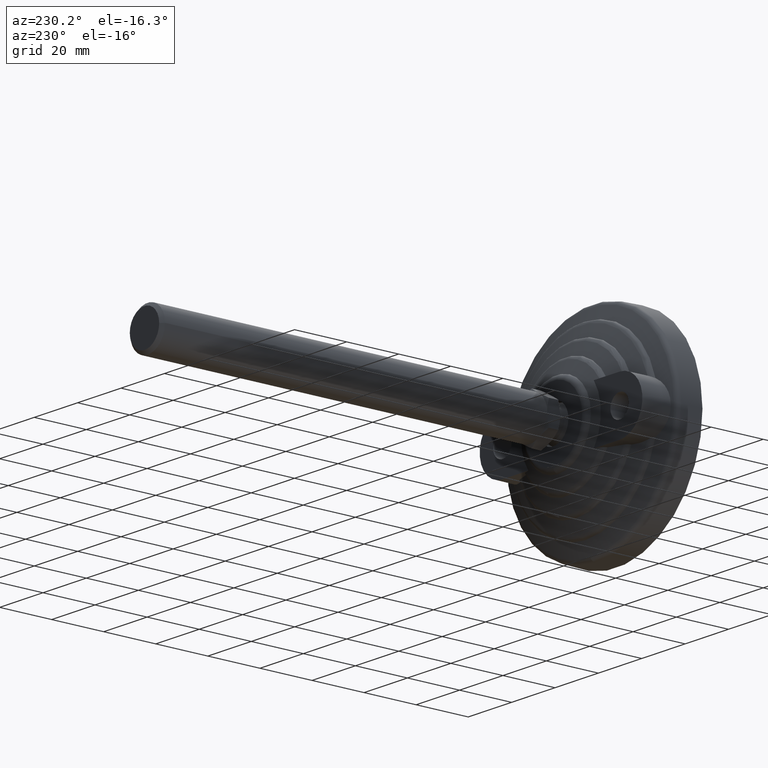
[diagram: clean part render]
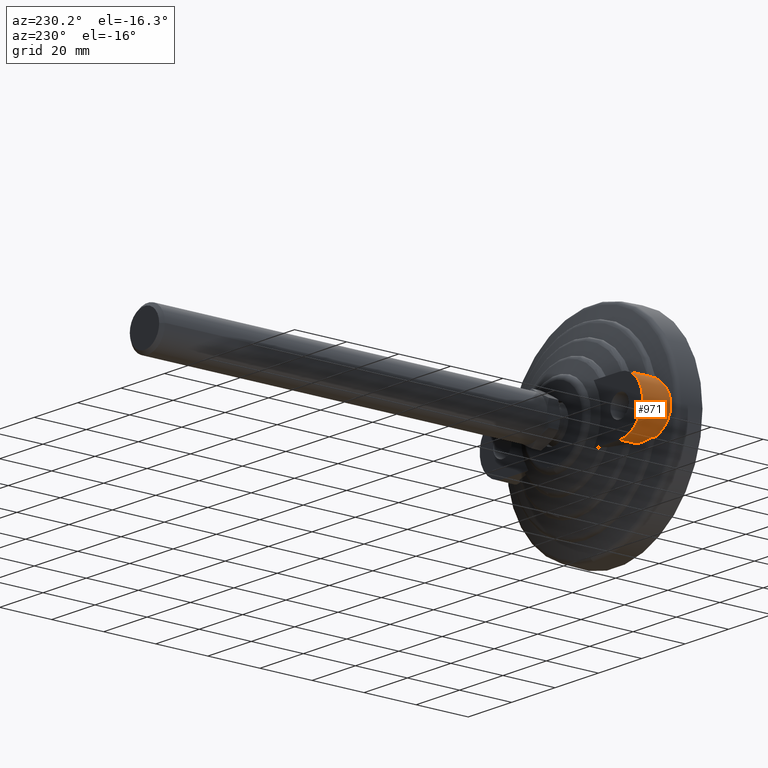
[diagram: same view with one face highlighted and labeled with its STEP entity id]
A machine part, auxiliary view. The second image highlights one B-rep face of the part: STEP entity #971.
In plain terms, the highlighted cylindrical surface (edge-blend (fillet) strip) has radius 10.5 mm, axis along (0, 1, 0).
Its self-contained STEP definition (entity closure, byte-faithful):
#115=B_SPLINE_CURVE_WITH_KNOTS('',3,(#1722,#1723,#1724,#1725,#1726,#1727),
 .UNSPECIFIED.,.F.,.F.,(4,2,4),(5.76722868500192,6.05783616383258,6.15239931787654),
 .UNSPECIFIED.);
#116=B_SPLINE_CURVE_WITH_KNOTS('',3,(#1729,#1730,#1731,#1732,#1733,#1734,
#1735,#1736,#1737,#1738),.UNSPECIFIED.,.F.,.F.,(4,2,2,2,4),(-0.277755263623777,
-0.240449563586303,-0.201911387548122,-0.120044959040971,0.),
 .UNSPECIFIED.);
#117=B_SPLINE_CURVE_WITH_KNOTS('',3,(#1740,#1741,#1742,#1743,#1744,#1745,
#1746,#1747,#1748,#1749,#1750,#1751,#1752,#1753,#1754,#1755,#1756,#1757,
#1758,#1759,#1760,#1761),.UNSPECIFIED.,.F.,.F.,(4,2,2,2,2,2,2,2,2,2,4),
(3.43606543224134,3.49650336834101,3.75130165602007,4.00609994369912,4.26089823137818,
4.51569651905723,4.77049480673629,5.02529309441534,5.2800913820944,5.53488966977346,
5.59532760587313),.UNSPECIFIED.);
#118=B_SPLINE_CURVE_WITH_KNOTS('',3,(#1763,#1764,#1765,#1766,#1767,#1768,
#1769,#1770,#1771,#1772),.UNSPECIFIED.,.F.,.F.,(4,2,2,2,4),(-0.258726061847404,
-0.192005591979209,-0.127331546332243,-0.0568854047078998,0.),
 .UNSPECIFIED.);
#119=B_SPLINE_CURVE_WITH_KNOTS('',3,(#1773,#1774,#1775,#1776,#1777,#1778),
 .UNSPECIFIED.,.F.,.F.,(4,2,4),(2.8665167227233,2.96107987676726,3.25168735559793),
 .UNSPECIFIED.);
#154=FACE_OUTER_BOUND('',#213,.T.);
#213=EDGE_LOOP('',(#709,#710,#711,#712,#713,#714,#715,#716));
#272=LINE('',#1647,#297);
#273=LINE('',#1654,#298);
#297=VECTOR('',#1259,10.);
#298=VECTOR('',#1262,10.);
#330=CIRCLE('',#1086,10.5);
#412=VERTEX_POINT('',#1607);
#413=VERTEX_POINT('',#1609);
#418=VERTEX_POINT('',#1643);
#420=VERTEX_POINT('',#1653);
#429=VERTEX_POINT('',#1721);
#430=VERTEX_POINT('',#1728);
#431=VERTEX_POINT('',#1739);
#432=VERTEX_POINT('',#1762);
#520=EDGE_CURVE('',#413,#412,#330,.T.);
#527=EDGE_CURVE('',#418,#412,#272,.T.);
#529=EDGE_CURVE('',#420,#413,#273,.T.);
#540=EDGE_CURVE('',#429,#418,#115,.T.);
#541=EDGE_CURVE('',#430,#429,#116,.T.);
#542=EDGE_CURVE('',#431,#430,#117,.T.);
#543=EDGE_CURVE('',#432,#431,#118,.T.);
#544=EDGE_CURVE('',#420,#432,#119,.T.);
#709=ORIENTED_EDGE('',*,*,#540,.F.);
#710=ORIENTED_EDGE('',*,*,#541,.F.);
#711=ORIENTED_EDGE('',*,*,#542,.F.);
#712=ORIENTED_EDGE('',*,*,#543,.F.);
#713=ORIENTED_EDGE('',*,*,#544,.F.);
#714=ORIENTED_EDGE('',*,*,#529,.T.);
#715=ORIENTED_EDGE('',*,*,#520,.T.);
#716=ORIENTED_EDGE('',*,*,#527,.F.);
#956=CYLINDRICAL_SURFACE('',#1090,10.5);
#971=ADVANCED_FACE('',(#154),#956,.T.);
#1086=AXIS2_PLACEMENT_3D('',#1610,#1254,#1255);
#1090=AXIS2_PLACEMENT_3D('',#1720,#1266,#1267);
#1254=DIRECTION('center_axis',(0.,-1.,0.));
#1255=DIRECTION('ref_axis',(0.,0.,-1.));
#1259=DIRECTION('',(0.,1.,0.));
#1262=DIRECTION('',(0.,1.,0.));
#1266=DIRECTION('center_axis',(0.,1.,0.));
#1267=DIRECTION('ref_axis',(0.,0.,-1.));
#1607=CARTESIAN_POINT('',(-27.,21.,-10.5));
#1609=CARTESIAN_POINT('',(-27.,21.,10.5));
#1610=CARTESIAN_POINT('Origin',(-27.,21.,0.));
#1643=CARTESIAN_POINT('',(-27.,14.6225422536565,-10.5));
#1647=CARTESIAN_POINT('',(-27.,1.,-10.5));
#1653=CARTESIAN_POINT('',(-27.,14.6225422536565,10.5));
#1654=CARTESIAN_POINT('',(-27.,1.,10.5));
#1720=CARTESIAN_POINT('Origin',(-27.,1.,0.));
#1721=CARTESIAN_POINT('',(-30.7243523480942,13.353673555576,-9.81729084764454));
#1722=CARTESIAN_POINT('Ctrl Pts',(-30.7243523480942,13.353673555576,-9.81729084764453));
#1723=CARTESIAN_POINT('Ctrl Pts',(-29.830006323037,13.6428573128391,-10.1565758673228));
#1724=CARTESIAN_POINT('Ctrl Pts',(-28.8835374298768,13.9591533364495,-10.373863285386));
#1725=CARTESIAN_POINT('Ctrl Pts',(-27.6208747110214,14.4006946398294,-10.4862470382709));
#1726=CARTESIAN_POINT('Ctrl Pts',(-27.3100625601747,14.5109163877395,-10.5));
#1727=CARTESIAN_POINT('Ctrl Pts',(-27.,14.6225422536565,-10.5));
#1728=CARTESIAN_POINT('',(-32.3063347882672,11.634402129208,-9.0605083254101));
#1729=CARTESIAN_POINT('Ctrl Pts',(-32.3063347882672,11.634402129208,-9.06050832541008));
#1730=CARTESIAN_POINT('Ctrl Pts',(-32.2945097725938,11.7470214768291,-9.06743370859899));
#1731=CARTESIAN_POINT('Ctrl Pts',(-32.2711448108866,11.8570399226639,-9.08110933825304));
#1732=CARTESIAN_POINT('Ctrl Pts',(-32.2025727881487,12.0737170603725,-9.12057303751808));
#1733=CARTESIAN_POINT('Ctrl Pts',(-32.1570729432958,12.1788603178273,-9.14649888055782));
#1734=CARTESIAN_POINT('Ctrl Pts',(-31.9878000675641,12.4897320142283,-9.24062730694749));
#1735=CARTESIAN_POINT('Ctrl Pts',(-31.834189715029,12.6746567257404,-9.3230214032625));
#1736=CARTESIAN_POINT('Ctrl Pts',(-31.4026645792191,13.058894855084,-9.53669261508742));
#1737=CARTESIAN_POINT('Ctrl Pts',(-31.0830924858773,13.2400784773632,-9.68119681770869));
#1738=CARTESIAN_POINT('Ctrl Pts',(-30.7243523480942,13.353673555576,-9.81729084764453));
#1739=CARTESIAN_POINT('',(-32.3063347882672,11.634402129208,9.0605083254101));
#1740=CARTESIAN_POINT('Ctrl Pts',(-32.3063347882672,11.634402129208,9.06050832541009));
#1741=CARTESIAN_POINT('Ctrl Pts',(-32.4756282120752,11.5807529569084,8.9613607332537));
#1742=CARTESIAN_POINT('Ctrl Pts',(-32.6416513835052,11.5284668447145,8.85775183258476));
#1743=CARTESIAN_POINT('Ctrl Pts',(-33.4889272146619,11.2631137489724,8.29573262740808));
#1744=CARTESIAN_POINT('Ctrl Pts',(-34.1415479553644,11.0639803282255,7.74512395475072));
#1745=CARTESIAN_POINT('Ctrl Pts',(-35.3059647272951,10.7146726535325,6.48071000741379));
#1746=CARTESIAN_POINT('Ctrl Pts',(-35.8178332302516,10.5643788194163,5.76700451409473));
#1747=CARTESIAN_POINT('Ctrl Pts',(-36.6493270133366,10.3226629521174,4.23119495069076));
#1748=CARTESIAN_POINT('Ctrl Pts',(-36.9700150310205,10.2308804167138,3.40717504130202));
#1749=CARTESIAN_POINT('Ctrl Pts',(-37.3954079477496,10.1095211444229,1.71625612304319));
#1750=CARTESIAN_POINT('Ctrl Pts',(-37.5,10.0799597506078,0.849327625596855));
#1751=CARTESIAN_POINT('Ctrl Pts',(-37.5,10.0799597506078,-0.849327625596851));
#1752=CARTESIAN_POINT('Ctrl Pts',(-37.3954079477496,10.1095211444229,-1.71625612304319));
#1753=CARTESIAN_POINT('Ctrl Pts',(-36.9700150310205,10.2308804167138,-3.40717504130202));
#1754=CARTESIAN_POINT('Ctrl Pts',(-36.6493270133366,10.3226629521174,-4.23119495069075));
#1755=CARTESIAN_POINT('Ctrl Pts',(-35.8178332302516,10.5643788194163,-5.76700451409472));
#1756=CARTESIAN_POINT('Ctrl Pts',(-35.3059647272951,10.7146726535325,-6.48071000741379));
#1757=CARTESIAN_POINT('Ctrl Pts',(-34.1415479553644,11.0639803282255,-7.74512395475072));
#1758=CARTESIAN_POINT('Ctrl Pts',(-33.4889272146619,11.2631137489724,-8.29573262740808));
#1759=CARTESIAN_POINT('Ctrl Pts',(-32.6416513835052,11.5284668447145,-8.85775183258476));
#1760=CARTESIAN_POINT('Ctrl Pts',(-32.4756282120752,11.5807529569084,-8.9613607332537));
#1761=CARTESIAN_POINT('Ctrl Pts',(-32.3063347882672,11.634402129208,-9.06050832541009));
#1762=CARTESIAN_POINT('',(-30.7243523480942,13.353673555576,9.81729084764454));
#1763=CARTESIAN_POINT('Ctrl Pts',(-30.7243523480942,13.353673555576,9.81729084764452));
#1764=CARTESIAN_POINT('Ctrl Pts',(-30.9249192667173,13.2901640331995,9.74120245565162));
#1765=CARTESIAN_POINT('Ctrl Pts',(-31.1176632793467,13.2040697130787,9.66091229015537));
#1766=CARTESIAN_POINT('Ctrl Pts',(-31.4696813103391,12.9923466545999,9.50305256582415));
#1767=CARTESIAN_POINT('Ctrl Pts',(-31.631504935965,12.8669447190815,9.42468246153176));
#1768=CARTESIAN_POINT('Ctrl Pts',(-31.9285271454044,12.5622747473225,9.27307113458739));
#1769=CARTESIAN_POINT('Ctrl Pts',(-32.0615319674481,12.3775761644904,9.2001629761949));
#1770=CARTESIAN_POINT('Ctrl Pts',(-32.2347537825474,12.0023477734723,9.10248569274575));
#1771=CARTESIAN_POINT('Ctrl Pts',(-32.2865707035807,11.8226317591034,9.07208326650206));
#1772=CARTESIAN_POINT('Ctrl Pts',(-32.3063347882672,11.634402129208,9.06050832541008));
#1773=CARTESIAN_POINT('Ctrl Pts',(-27.,14.6225422536565,10.5));
#1774=CARTESIAN_POINT('Ctrl Pts',(-27.3100625601747,14.5109163877395,10.5));
#1775=CARTESIAN_POINT('Ctrl Pts',(-27.6208747110214,14.4006946398294,10.4862470382709));
#1776=CARTESIAN_POINT('Ctrl Pts',(-28.8835374298768,13.9591533364495,10.373863285386));
#1777=CARTESIAN_POINT('Ctrl Pts',(-29.830006323037,13.6428573128391,10.1565758673228));
#1778=CARTESIAN_POINT('Ctrl Pts',(-30.7243523480942,13.353673555576,9.81729084764453));